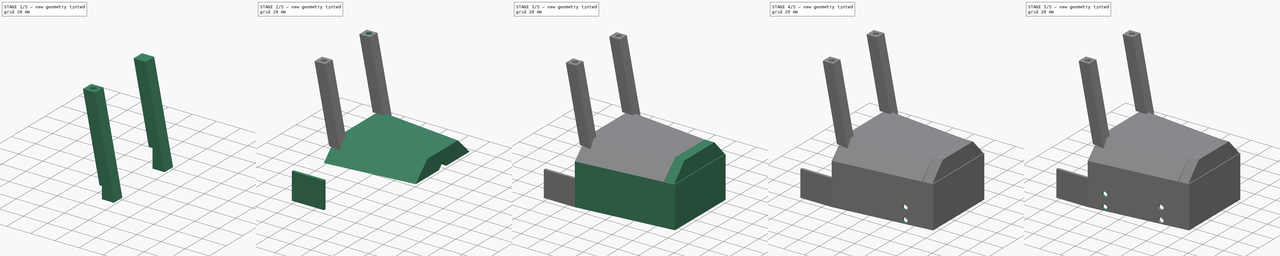
[diagram: build sequence overview — one tinted view per stage of 5, left to right]
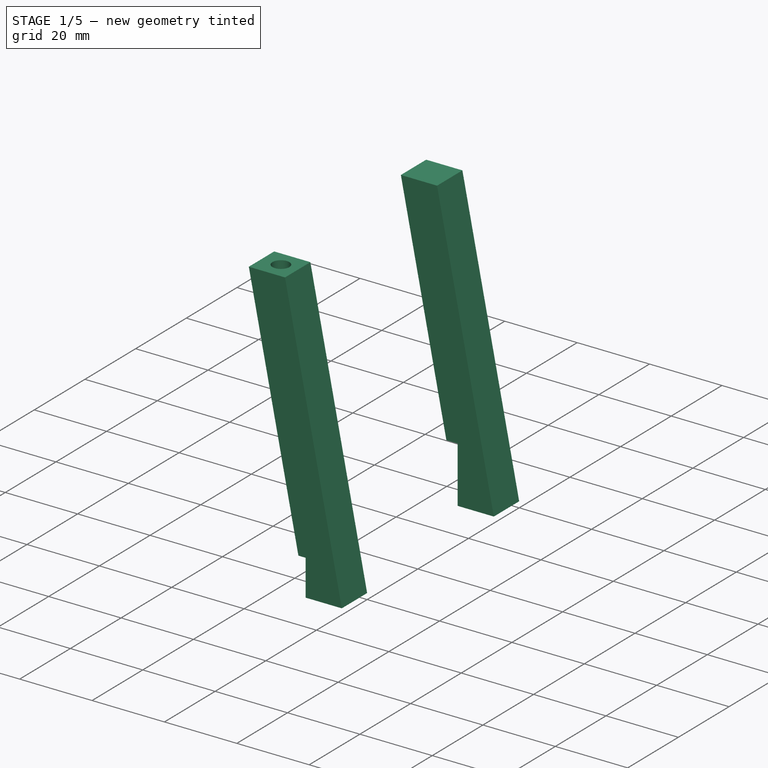
[diagram: stage 1 of 5 — iso view after this stage's code; geometry added in this stage tinted green]
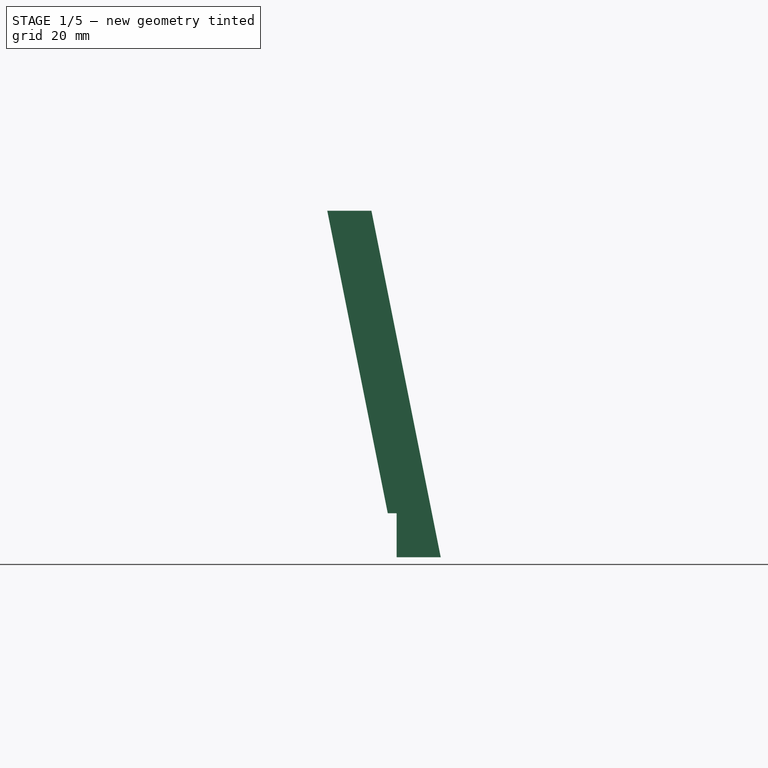
[diagram: stage 1 of 5 — front view after this stage's code; geometry added in this stage tinted green]
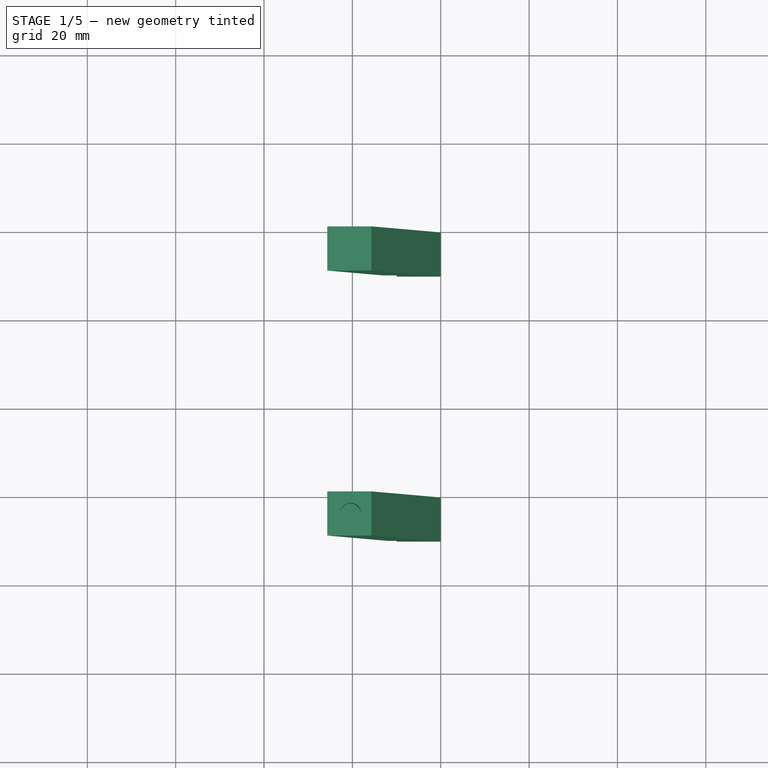
[diagram: stage 1 of 5 — top view after this stage's code; geometry added in this stage tinted green]
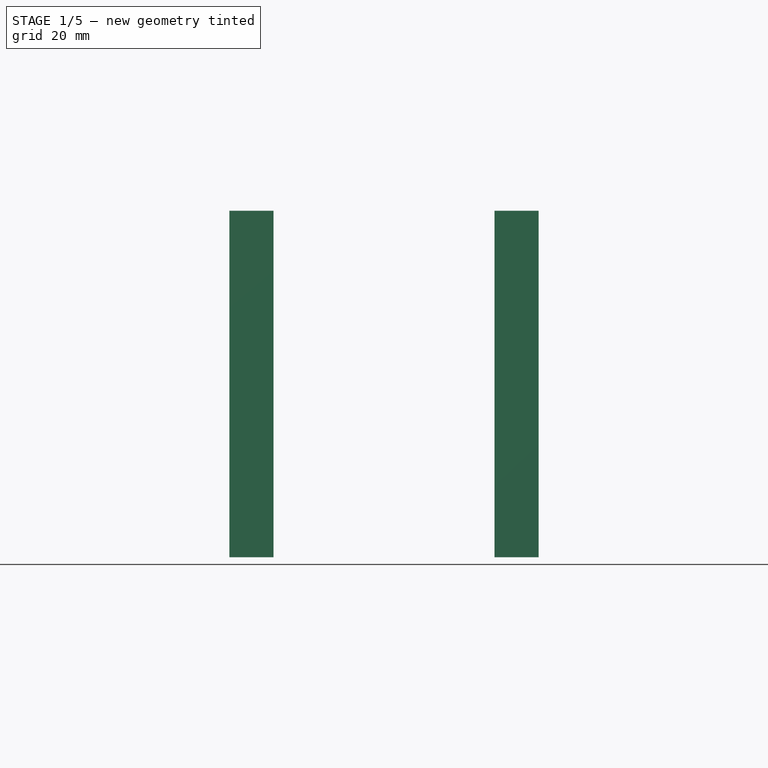
[diagram: stage 1 of 5 — right view after this stage's code; geometry added in this stage tinted green]
FCSTD DOCUMENT  (FreeCAD 0.20R29410 (Git))
Label: Carcasa
License: Creative Commons Attribution-ShareAlike
LicenseURL: http://creativecommons.org/licenses/by-sa/4.0/
objects: Sketcher::SketchObject×13, Part::Extrusion×13, Part::Cut×7, Part::MultiFuse×5
note: 38 computed .brp shape members not serialized (recipe doc carries the construction recipe); baked Part::Feature solids carry a one-line shape summary decoded from their .brp

FEATURE [Sketcher::SketchObject] Sketch022
  FullyConstrained = false
  MapMode = 5
  Placement = pos=(0,0,30) rot=(0,0,1;0rad)
  sketch-geometry (8):
    g0: LineSegment StartX=10 StartY=80 StartZ=0 EndX=20 EndY=80 EndZ=0
    g1: LineSegment StartX=20 StartY=80 StartZ=0 EndX=20 EndY=70 EndZ=0
    g2: LineSegment StartX=20 StartY=70 StartZ=0 EndX=10 EndY=70 EndZ=0
    g3: LineSegment StartX=10 StartY=70 StartZ=0 EndX=10 EndY=80 EndZ=0
    g4: LineSegment StartX=10 StartY=20 StartZ=0 EndX=20 EndY=20 EndZ=0
    g5: LineSegment StartX=20 StartY=20 StartZ=0 EndX=20 EndY=10 EndZ=0
    g6: LineSegment StartX=20 StartY=10 StartZ=0 EndX=10 EndY=10 EndZ=0
    g7: LineSegment StartX=10 StartY=10 StartZ=0 EndX=10 EndY=20 EndZ=0
  constraints (16):
    c: Coincident(g0,g1)
    c: Coincident(g1,g2)
    c: Coincident(g2,g3)
    c: Coincident(g3,g0)
    c: Horizontal(g0)
    c: Horizontal(g2)
    c: Vertical(g1)
    c: Vertical(g3)
    c: Coincident(g4,g5)
    c: Coincident(g5,g6)
    c: Coincident(g6,g7)
    c: Coincident(g7,g4)
    c: Horizontal(g4)
    c: Horizontal(g6)
    c: Vertical(g5)
    c: Vertical(g7)
FEATURE [Part::Extrusion] Extrude025
  Base = -> Sketch022
  Dir = (-0.2,0,1)
  DirMode = 0
  FaceMakerClass = Part::FaceMakerBullseye
  LengthFwd = 80
  LengthRev = 0
  Placement = pos=(20,0,40) rot=(0,0,1;0rad)
  Solid = true
  Symmetric = false
FEATURE [Sketcher::SketchObject] Sketch056
  FullyConstrained = false
  MapMode = 5
  Placement = pos=(30,0,30) rot=(0.57735,-0.57735,-0.57735;2.0944rad)
  sketch-geometry (6):
    g0: LineSegment StartX=0 StartY=25.2875 StartZ=0 EndX=0 EndY=40 EndZ=0
    g1: LineSegment StartX=0 StartY=40 StartZ=0 EndX=-15.6254 EndY=55.5589 EndZ=0
    g2: LineSegment StartX=-15.6254 StartY=55.5589 StartZ=0 EndX=-74.4647 EndY=55.5589 EndZ=0
    g3: LineSegment StartX=-74.4647 StartY=55.5589 StartZ=0 EndX=-90 EndY=40 EndZ=0
    g4: LineSegment StartX=-90 StartY=40 StartZ=0 EndX=-90 EndY=25.2875 EndZ=0
    g5: LineSegment StartX=-90 StartY=25.2875 StartZ=0 EndX=0 EndY=25.2875 EndZ=0
  constraints (11):
    c: PointOnObject(g0,g-2)
    c: PointOnObject(g0,g-2)
    c: Coincident(g0,g1)
    c: Coincident(g1,g2)
    c: Horizontal(g2)
    c: Coincident(g2,g3)
    c: Coincident(g3,g4)
    c: Vertical(g4)
    c: Coincident(g5,g4)
    c: Coincident(g5,g0)
    c: Horizontal(g5)
FEATURE [Part::Extrusion] Extrude053
  Base = -> Sketch056
  Dir = (-1,0,0)
  DirMode = 2
  FaceMakerClass = Part::FaceMakerBullseye
  LengthFwd = 10
  LengthRev = 0
  Solid = true
  Symmetric = false
FEATURE [Part::Cut] Cut
  Base = -> Extrude025
  Refine = true
  Tool = -> Extrude053
FEATURE [Sketcher::SketchObject] Sketch062
  FullyConstrained = false
  MapMode = 5
  Placement = pos=(-98,-107,0) rot=(0.57735,-0.57735,-0.57735;2.0944rad)
  sketch-geometry (3):
    g0: LineSegment StartX=-140.012 StartY=30 StartZ=0 EndX=-130 EndY=30 EndZ=0
    g1: Circle CenterX=-135.006 CenterY=30 CenterZ=0 NormalX=0 NormalY=0 NormalZ=1 AngleXU=0 Radius=2.34
    g2: LineSegment StartX=-140 StartY=20 StartZ=0 EndX=-130.017 EndY=20 EndZ=0
  constraints (3):
    c: Horizontal(g0)
    c: Symmetric(g0,g0,g1)
    c: Horizontal(g2)
FEATURE [Part::Extrusion] Extrude065  label="Tornillos020"
  Base = -> Sketch062
  Dir = (-1,2e-16,2e-16)
  DirMode = 2
  FaceMakerClass = Part::FaceMakerBullseye
  LengthFwd = 20
  LengthRev = 0
  Placement = pos=(49.6,-12.9,253.6) rot=(0,-1,0;1.5708rad)
  Solid = true
  Symmetric = false
FEATURE [Part::Cut] Cut035
  Base = -> Cut
  Refine = true
  Tool = -> Extrude065
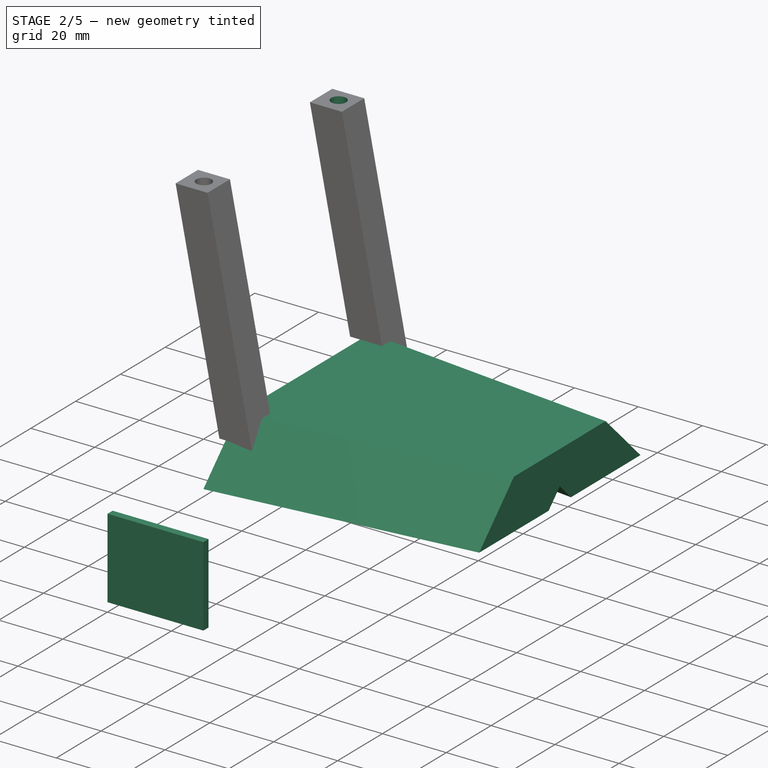
[diagram: stage 2 of 5 — iso view after this stage's code; geometry added in this stage tinted green]
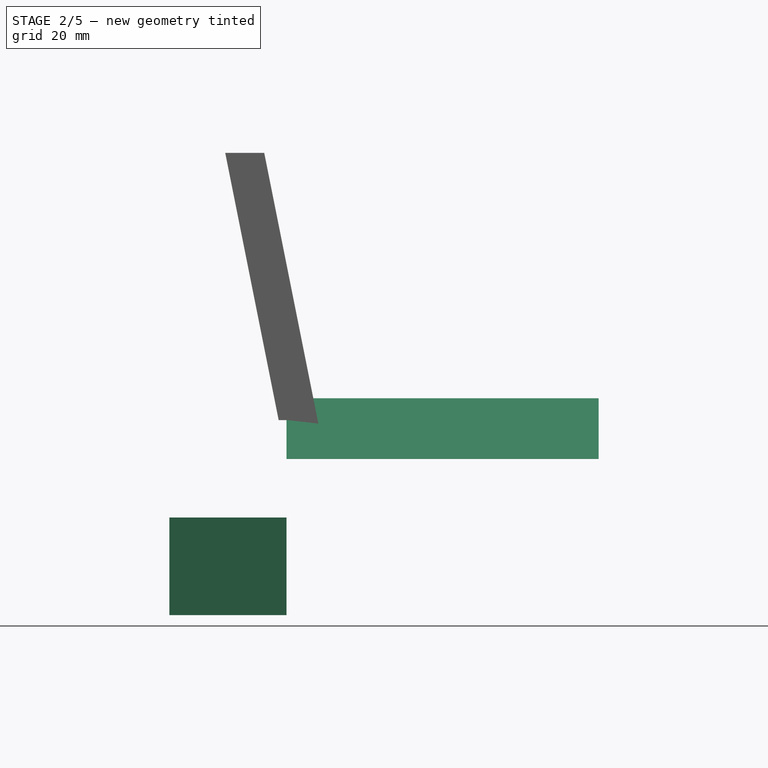
[diagram: stage 2 of 5 — front view after this stage's code; geometry added in this stage tinted green]
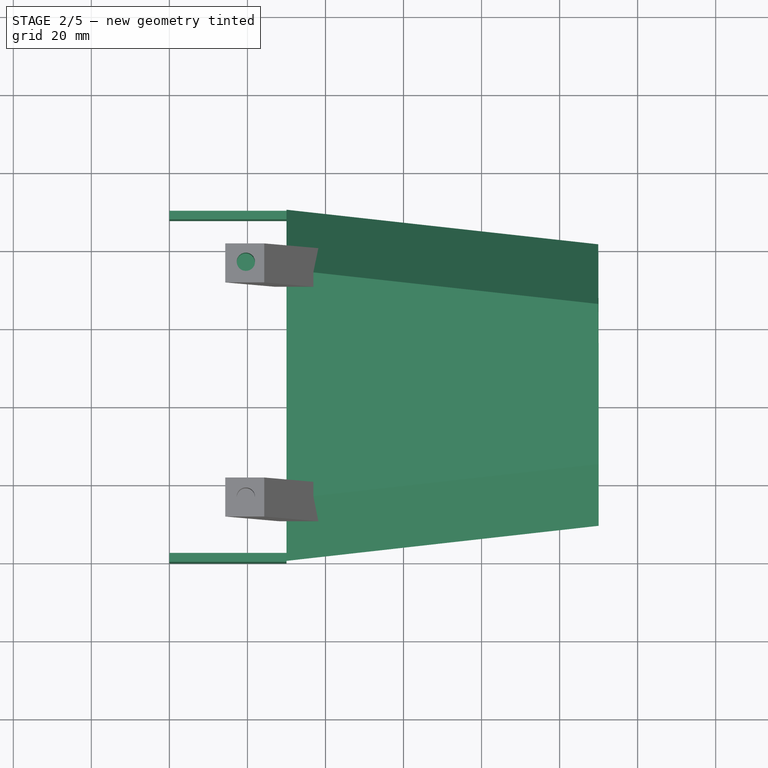
[diagram: stage 2 of 5 — top view after this stage's code; geometry added in this stage tinted green]
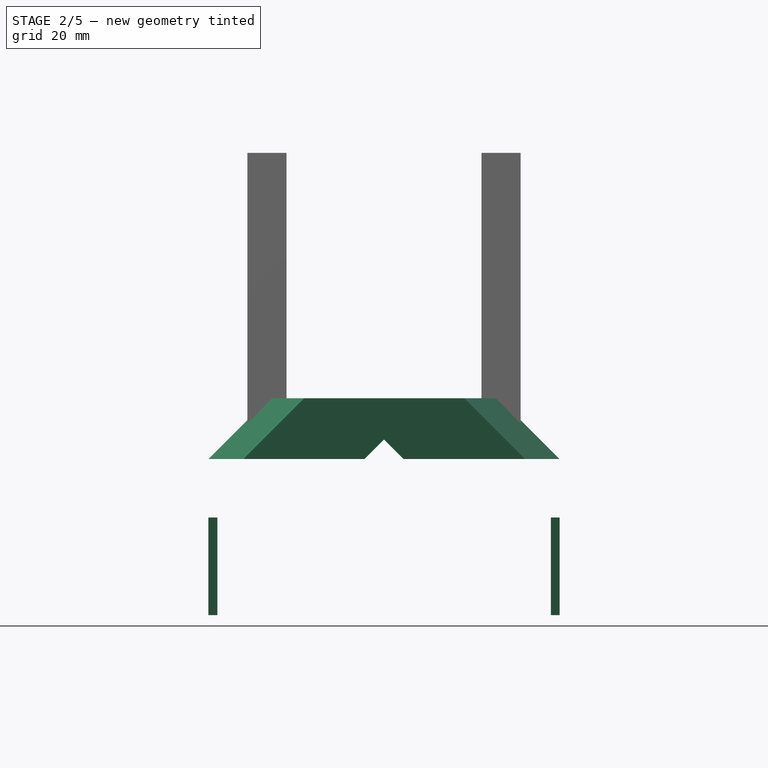
[diagram: stage 2 of 5 — right view after this stage's code; geometry added in this stage tinted green]
FEATURE [Sketcher::SketchObject] Sketch020
  FullyConstrained = false
  MapMode = 5
  Placement = pos=(0,0,30) rot=(0,0,1;0rad)
  sketch-geometry (4):
    g0: LineSegment StartX=30 StartY=60 StartZ=0 EndX=110 EndY=50 EndZ=0
    g1: LineSegment StartX=110 StartY=50 StartZ=0 EndX=109.915 EndY=81.1374 EndZ=0
    g2: LineSegment StartX=109.915 StartY=81.1374 StartZ=0 EndX=30 EndY=90 EndZ=0
    g3: LineSegment StartX=30 StartY=90 StartZ=0 EndX=30 EndY=60 EndZ=0
  constraints (3):
    c: Coincident(g0,g1)
    c: Coincident(g1,g2)
    c: Vertical(g3)
FEATURE [Part::Extrusion] Extrude023  label="Carcasa delantera"
  Base = -> Sketch020
  Dir = (0,-1,1)
  DirMode = 0
  FaceMakerClass = Part::FaceMakerBullseye
  LengthFwd = 22
  LengthRev = 0
  Placement = pos=(0,0,40) rot=(0,0,1;0rad)
  Solid = true
  Symmetric = false
FEATURE [Sketcher::SketchObject] Sketch021
  FullyConstrained = false
  MapMode = 5
  Placement = pos=(0,0,30) rot=(0,0,1;0rad)
  sketch-geometry (4):
    g0: LineSegment StartX=110 StartY=8.98712 StartZ=0 EndX=110 EndY=40 EndZ=0
    g1: LineSegment StartX=110 StartY=40 StartZ=0 EndX=30 EndY=30 EndZ=0
    g2: LineSegment StartX=30 StartY=0 StartZ=0 EndX=110 EndY=8.98712 EndZ=0
    g3: LineSegment StartX=30 StartY=0 StartZ=0 EndX=30 EndY=30 EndZ=0
  constraints (5):
    c: Coincident(g1,g0)
    c: PointOnObject(g2,g-1)
    c: Coincident(g2,g0)
    c: Coincident(g3,g1)
    c: Vertical(g3)
FEATURE [Part::Extrusion] Extrude024  label="Carcasa delantera001"
  Base = -> Sketch021
  Dir = (0,1,1)
  DirMode = 0
  FaceMakerClass = Part::FaceMakerBullseye
  LengthFwd = 22
  LengthRev = 0
  Placement = pos=(0,0,40) rot=(0,0,1;0rad)
  Solid = true
  Symmetric = false
FEATURE [Sketcher::SketchObject] Sketch049
  FullyConstrained = false
  MapMode = 5
  Placement = pos=(0,0,30) rot=(0,0,1;0rad)
  sketch-geometry (8):
    g0: LineSegment StartX=0 StartY=90 StartZ=0 EndX=30 EndY=90 EndZ=0
    g1: LineSegment StartX=30 StartY=90 StartZ=0 EndX=30 EndY=87.7792 EndZ=0
    g2: LineSegment StartX=30 StartY=87.7792 StartZ=0 EndX=0 EndY=87.7792 EndZ=0
    g3: LineSegment StartX=0 StartY=87.7792 StartZ=0 EndX=0 EndY=90 EndZ=0
    g4: LineSegment StartX=0 StartY=0 StartZ=0 EndX=0 EndY=2.31108 EndZ=0
    g5: LineSegment StartX=0 StartY=2.31108 StartZ=0 EndX=30 EndY=2.31108 EndZ=0
    g6: LineSegment StartX=30 StartY=2.31108 StartZ=0 EndX=30 EndY=0 EndZ=0
    g7: LineSegment StartX=30 StartY=0 StartZ=0 EndX=0 EndY=0 EndZ=0
  constraints (18):
    c: PointOnObject(g0,g-2)
    c: Horizontal(g0)
    c: Coincident(g0,g1)
    c: Vertical(g1)
    c: Coincident(g1,g2)
    c: PointOnObject(g2,g-2)
    c: Horizontal(g2)
    c: Coincident(g2,g3)
    c: Coincident(g3,g0)
    c: Coincident(g-1,g4)
    c: PointOnObject(g4,g-2)
    c: Coincident(g4,g5)
    c: Horizontal(g5)
    c: Coincident(g5,g6)
    c: PointOnObject(g6,g-1)
    c: Vertical(g6)
    c: Coincident(g6,g7)
    c: Coincident(g7,g4)
FEATURE [Part::Extrusion] Extrude051
  Base = -> Sketch049
  Dir = (0,0,1)
  DirMode = 2
  FaceMakerClass = Part::FaceMakerBullseye
  LengthFwd = 25
  LengthRev = 0
  Solid = true
  Symmetric = false
FEATURE [Sketcher::SketchObject] Sketch057
  FullyConstrained = false
  MapMode = 5
  Placement = pos=(-98,-107,0) rot=(0.57735,-0.57735,-0.57735;2.0944rad)
  sketch-geometry (3):
    g0: LineSegment StartX=-140.012 StartY=30 StartZ=0 EndX=-130 EndY=30 EndZ=0
    g1: Circle CenterX=-135.006 CenterY=30 CenterZ=0 NormalX=0 NormalY=0 NormalZ=1 AngleXU=0 Radius=2.34
    g2: LineSegment StartX=-140 StartY=20 StartZ=0 EndX=-130.017 EndY=20 EndZ=0
  constraints (3):
    c: Horizontal(g0)
    c: Symmetric(g0,g0,g1)
    c: Horizontal(g2)
FEATURE [Part::Extrusion] Extrude061  label="Tornillos016"
  Base = -> Sketch057
  Dir = (-1,2e-16,2e-16)
  DirMode = 2
  FaceMakerClass = Part::FaceMakerBullseye
  LengthFwd = 20
  LengthRev = 0
  Placement = pos=(49.6,47.3,253.75) rot=(0,-1,0;1.5708rad)
  Solid = true
  Symmetric = false
FEATURE [Part::Cut] Cut036
  Base = -> Cut035
  Refine = true
  Tool = -> Extrude061
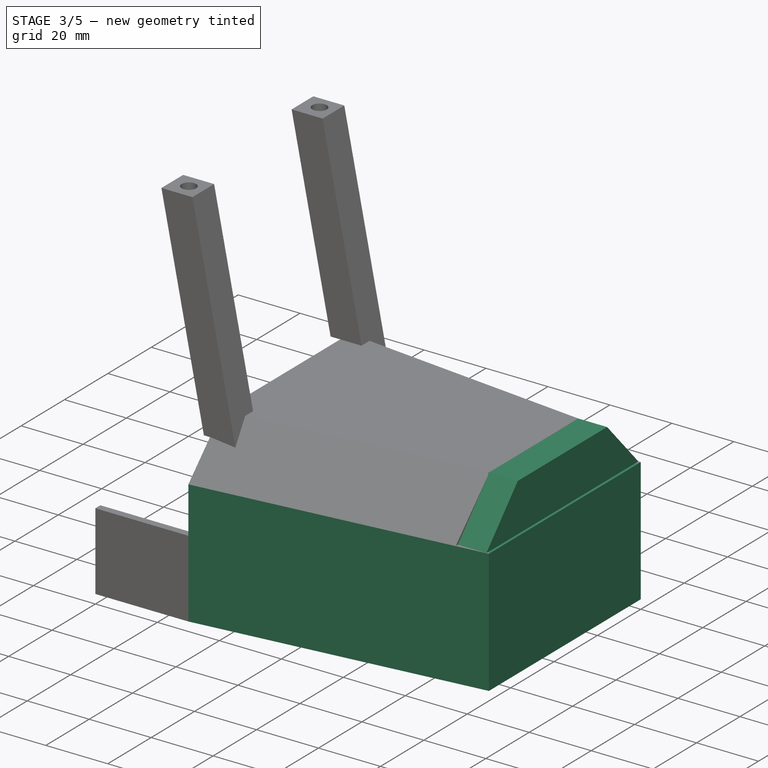
[diagram: stage 3 of 5 — iso view after this stage's code; geometry added in this stage tinted green]
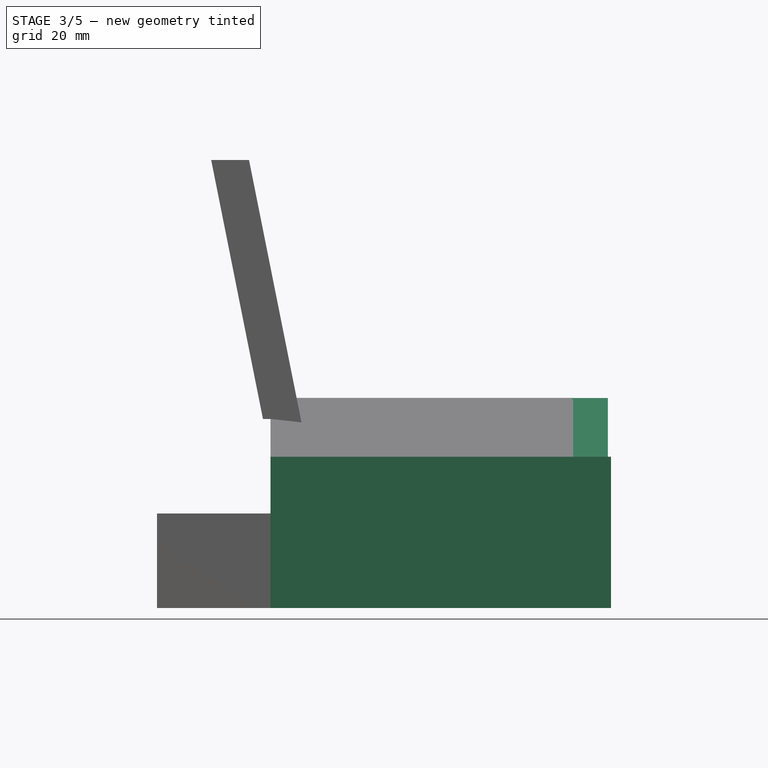
[diagram: stage 3 of 5 — front view after this stage's code; geometry added in this stage tinted green]
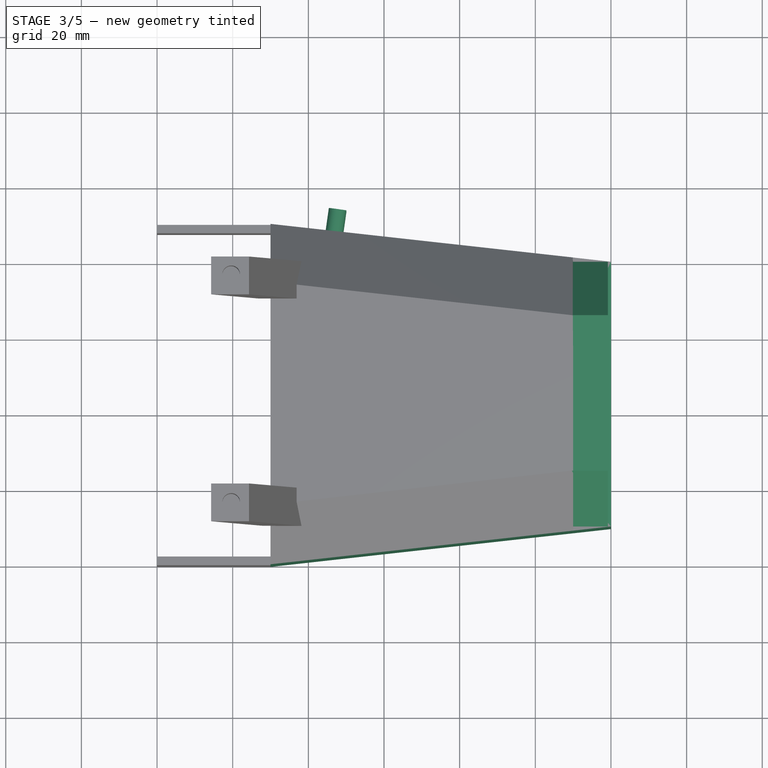
[diagram: stage 3 of 5 — top view after this stage's code; geometry added in this stage tinted green]
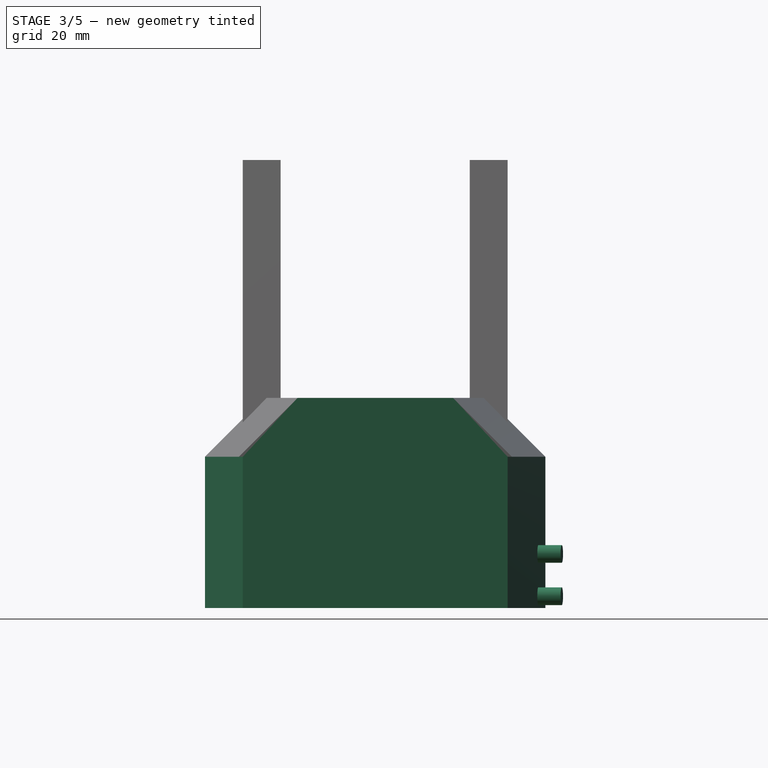
[diagram: stage 3 of 5 — right view after this stage's code; geometry added in this stage tinted green]
FEATURE [Sketcher::SketchObject] Sketch043
  FullyConstrained = false
  sketch-geometry (8):
    g0: LineSegment StartX=30 StartY=0 StartZ=0 EndX=120 EndY=10 EndZ=0
    g1: LineSegment StartX=120 StartY=10 StartZ=0 EndX=120 EndY=80 EndZ=0
    g2: LineSegment StartX=120 StartY=80 StartZ=0 EndX=30 EndY=90 EndZ=0
    g3: LineSegment StartX=30 StartY=90 StartZ=0 EndX=30 EndY=86.4594 EndZ=0
    g4: LineSegment StartX=30 StartY=86.4594 StartZ=0 EndX=118.511 EndY=76.9698 EndZ=0
    g5: LineSegment StartX=118.511 StartY=76.9698 StartZ=0 EndX=118.511 EndY=11.7511 EndZ=0
    g6: LineSegment StartX=118.511 StartY=11.7511 StartZ=0 EndX=30 EndY=2.54547 EndZ=0
    g7: LineSegment StartX=30 StartY=2.54547 StartZ=0 EndX=30 EndY=0 EndZ=0
  constraints (13):
    c: PointOnObject(g0,g-1)
    c: Coincident(g0,g1)
    c: Vertical(g1)
    c: Coincident(g1,g2)
    c: Coincident(g2,g3)
    c: Vertical(g3)
    c: Coincident(g3,g4)
    c: Coincident(g4,g5)
    c: Vertical(g5)
    c: Coincident(g5,g6)
    c: Coincident(g6,g7)
    c: Coincident(g7,g0)
    c: Vertical(g7)
FEATURE [Part::Extrusion] Extrude046  label="Carcasa delantera002"
  Base = -> Sketch043
  Dir = (0,0,1)
  DirMode = 2
  FaceMakerClass = Part::FaceMakerBullseye
  LengthFwd = 40
  LengthRev = 0
  Placement = pos=(0,0,30) rot=(0,0,1;0rad)
  Solid = true
  Symmetric = false
FEATURE [Sketcher::SketchObject] Sketch053
  FullyConstrained = false
  MapMode = 5
  Placement = pos=(-98,-107,0) rot=(0.57735,-0.57735,-0.57735;2.0944rad)
  sketch-geometry (4):
    g0: LineSegment StartX=-140.016 StartY=26.302 StartZ=0 EndX=-130.004 EndY=26.302 EndZ=0
    g1: Circle CenterX=-135.01 CenterY=26.302 CenterZ=0 NormalX=0 NormalY=0 NormalZ=1 AngleXU=0 Radius=2.34
    g2: LineSegment StartX=-140.095 StartY=15.1162 StartZ=0 EndX=-130 EndY=15.1162 EndZ=0
    g3: Circle CenterX=-135.047 CenterY=15.1162 CenterZ=0 NormalX=0 NormalY=0 NormalZ=1 AngleXU=0 Radius=2.34
  constraints (6):
    c: Horizontal(g0)
    c: Symmetric(g0,g0,g1)
    c: Horizontal(g2)
    c: Symmetric(g2,g2,g3)
    c: Equal(g1,g3)
    c: Diameter(g3) = 4.68
FEATURE [Part::Extrusion] Extrude058  label="Tornillos014"
  Base = -> Sketch053
  Dir = (-1,2e-16,2e-16)
  DirMode = 2
  FaceMakerClass = Part::FaceMakerBullseye
  LengthFwd = 20
  LengthRev = 0
  Placement = pos=(3.5767,-18.6127,18) rot=(0,0,1;4.57276rad)
  Solid = true
  Symmetric = false
FEATURE [Sketcher::SketchObject] Sketch
  FullyConstrained = false
  Placement = pos=(0,0,0) rot=(0.57735,0.57735,0.57735;2.0944rad)
  sketch-geometry (4):
    g0: LineSegment StartX=10 StartY=70 StartZ=0 EndX=24.4651 EndY=85.518 EndZ=0
    g1: LineSegment StartX=24.4651 StartY=85.518 StartZ=0 EndX=65.6255 EndY=85.518 EndZ=0
    g2: LineSegment StartX=65.6255 StartY=85.518 StartZ=0 EndX=80 EndY=70 EndZ=0
    g3: LineSegment StartX=80 StartY=70 StartZ=0 EndX=10 EndY=70 EndZ=0
  constraints (6):
    c: Coincident(g0,g1)
    c: Horizontal(g1)
    c: Coincident(g1,g2)
    c: Coincident(g2,g3)
    c: Coincident(g3,g0)
    c: Horizontal(g3)
FEATURE [Part::Extrusion] Extrude
  Base = -> Sketch
  Dir = (1,0,0)
  DirMode = 2
  FaceMakerClass = Part::FaceMakerBullseye
  LengthFwd = 10
  LengthRev = 0
  Placement = pos=(109.2,0,0) rot=(0,0,1;0rad)
  Solid = true
  Symmetric = false
FEATURE [Part::MultiFuse] Fusion019
  Refine = true
  Shapes = -> [Extrude023,Extrude024]
FEATURE [Part::MultiFuse] Fusion020
  Refine = true
  Shapes = -> [Fusion019,Extrude]
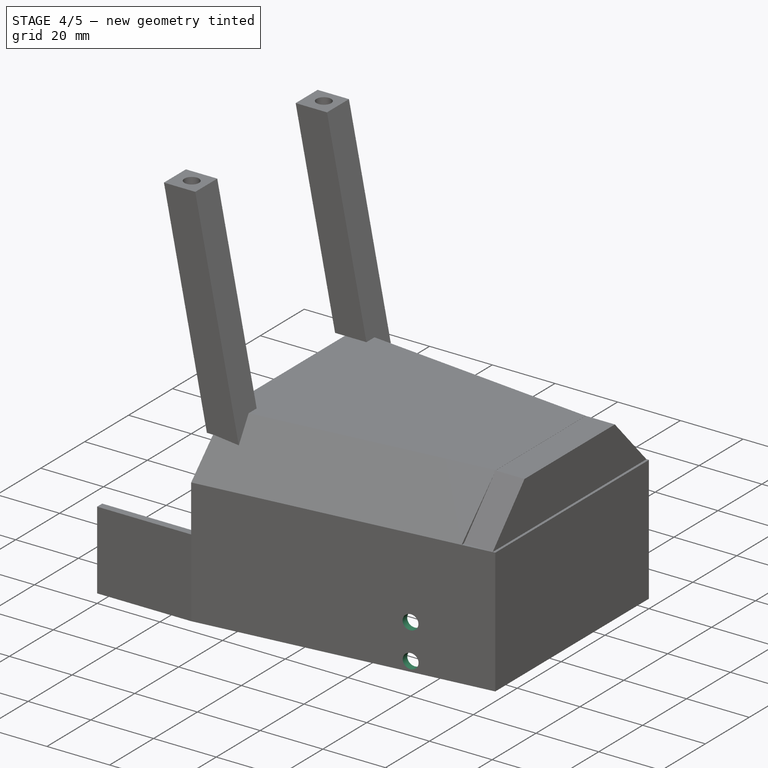
[diagram: stage 4 of 5 — iso view after this stage's code; geometry added in this stage tinted green]
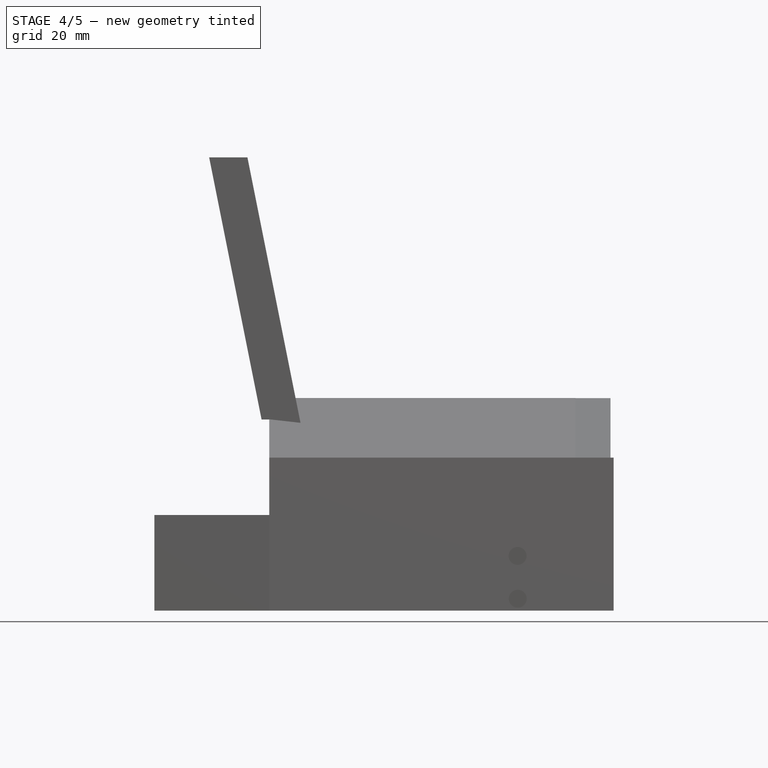
[diagram: stage 4 of 5 — front view after this stage's code; geometry added in this stage tinted green]
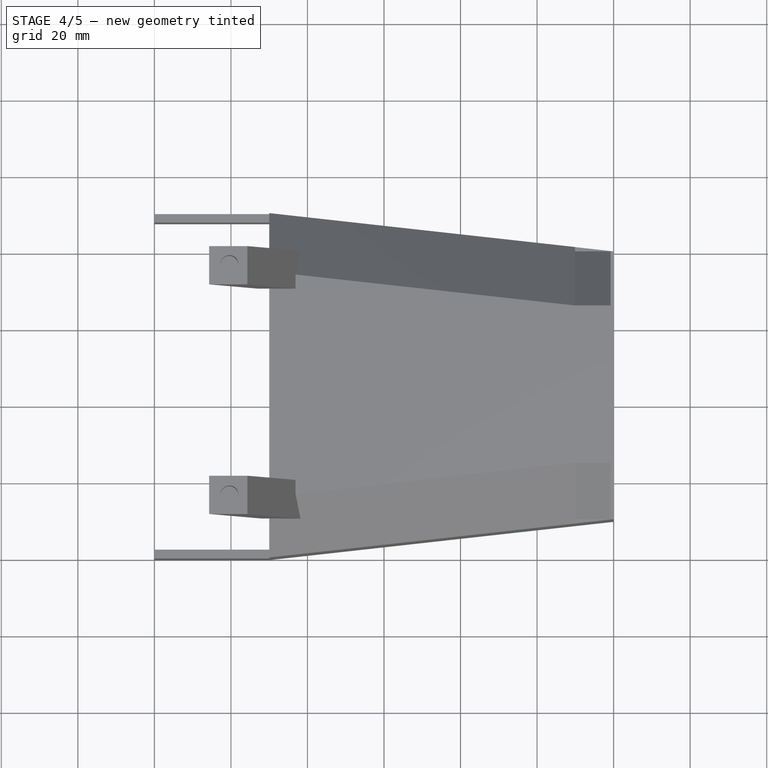
[diagram: stage 4 of 5 — top view after this stage's code; geometry added in this stage tinted green]
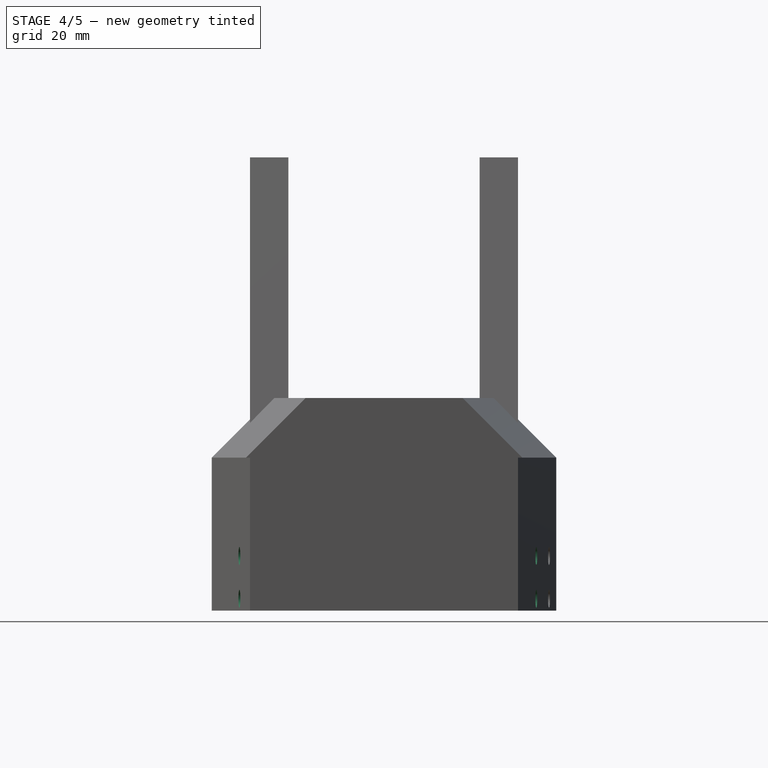
[diagram: stage 4 of 5 — right view after this stage's code; geometry added in this stage tinted green]
FEATURE [Sketcher::SketchObject] Sketch051
  FullyConstrained = false
  MapMode = 5
  Placement = pos=(-98,-107,4e-16) rot=(0.57735,-0.57735,-0.57735;2.0944rad)
  sketch-geometry (4):
    g0: LineSegment StartX=-140.016 StartY=26.302 StartZ=0 EndX=-130.004 EndY=26.302 EndZ=0
    g1: Circle CenterX=-135.01 CenterY=26.302 CenterZ=0 NormalX=0 NormalY=0 NormalZ=1 AngleXU=0 Radius=2.34
    g2: LineSegment StartX=-140.095 StartY=15.1162 StartZ=0 EndX=-130 EndY=15.1162 EndZ=0
    g3: Circle CenterX=-135.047 CenterY=15.1162 CenterZ=0 NormalX=0 NormalY=0 NormalZ=1 AngleXU=0 Radius=2.34
  constraints (6):
    c: Horizontal(g0)
    c: Symmetric(g0,g0,g1)
    c: Horizontal(g2)
    c: Symmetric(g2,g2,g3)
    c: Equal(g1,g3)
    c: Diameter(g3) = 4.68
FEATURE [Part::Extrusion] Extrude056  label="Tornillos012"
  Base = -> Sketch051
  Dir = (-1,2e-16,2e-16)
  DirMode = 2
  FaceMakerClass = Part::FaceMakerBullseye
  LengthFwd = 20
  LengthRev = 0
  Placement = pos=(66.9,-97,18) rot=(0,0,1;4.71239rad)
  Solid = true
  Symmetric = false
FEATURE [Sketcher::SketchObject] Sketch054
  FullyConstrained = false
  MapMode = 5
  Placement = pos=(-98,-107,0) rot=(0.57735,-0.57735,-0.57735;2.0944rad)
  sketch-geometry (4):
    g0: LineSegment StartX=-140.016 StartY=26.302 StartZ=0 EndX=-130.004 EndY=26.302 EndZ=0
    g1: Circle CenterX=-135.01 CenterY=26.302 CenterZ=0 NormalX=0 NormalY=0 NormalZ=1 AngleXU=0 Radius=2.34
    g2: LineSegment StartX=-140.095 StartY=15.1162 StartZ=0 EndX=-130 EndY=15.1162 EndZ=0
    g3: Circle CenterX=-135.047 CenterY=15.1162 CenterZ=0 NormalX=0 NormalY=0 NormalZ=1 AngleXU=0 Radius=2.34
  constraints (6):
    c: Horizontal(g0)
    c: Symmetric(g0,g0,g1)
    c: Horizontal(g2)
    c: Symmetric(g2,g2,g3)
    c: Equal(g1,g3)
    c: Diameter(g3) = 4.68
FEATURE [Part::Extrusion] Extrude059  label="Tornillos015"
  Base = -> Sketch054
  Dir = (-1,2e-16,2e-16)
  DirMode = 2
  FaceMakerClass = Part::FaceMakerBullseye
  LengthFwd = 20
  LengthRev = 0
  Placement = pos=(33.3838,-22.8018,18) rot=(0,0,-1;1.71042rad)
  Solid = true
  Symmetric = false
FEATURE [Part::Cut] Cut031
  Base = -> Extrude046
  Refine = true
  Tool = -> Extrude058
FEATURE [Part::Cut] Cut032
  Base = -> Cut031
  Refine = true
  Tool = -> Extrude059
FEATURE [Part::Cut] Cut033
  Base = -> Cut032
  Refine = true
  Tool = -> Extrude056
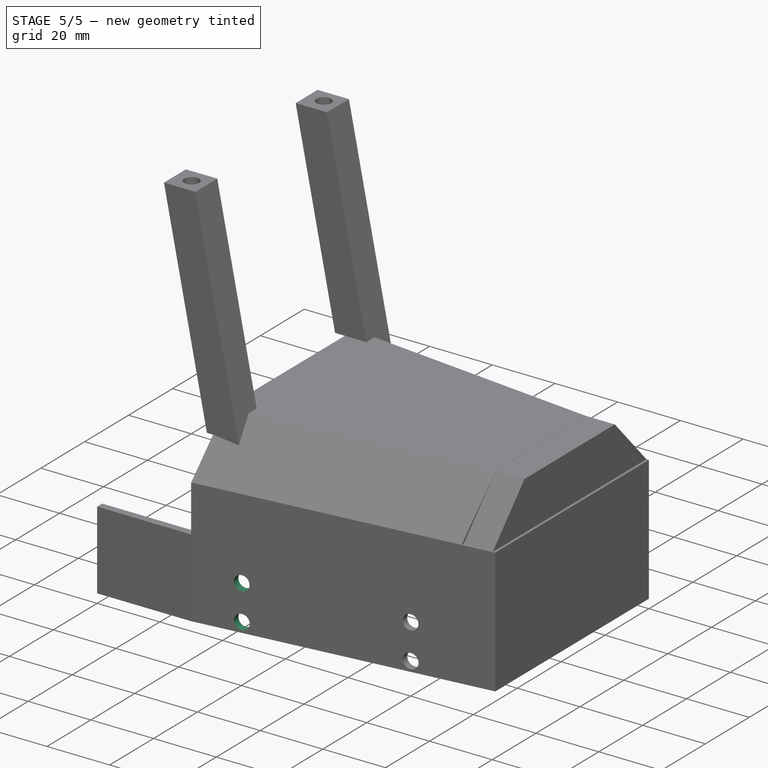
[diagram: stage 5 of 5 — iso view after this stage's code; geometry added in this stage tinted green]
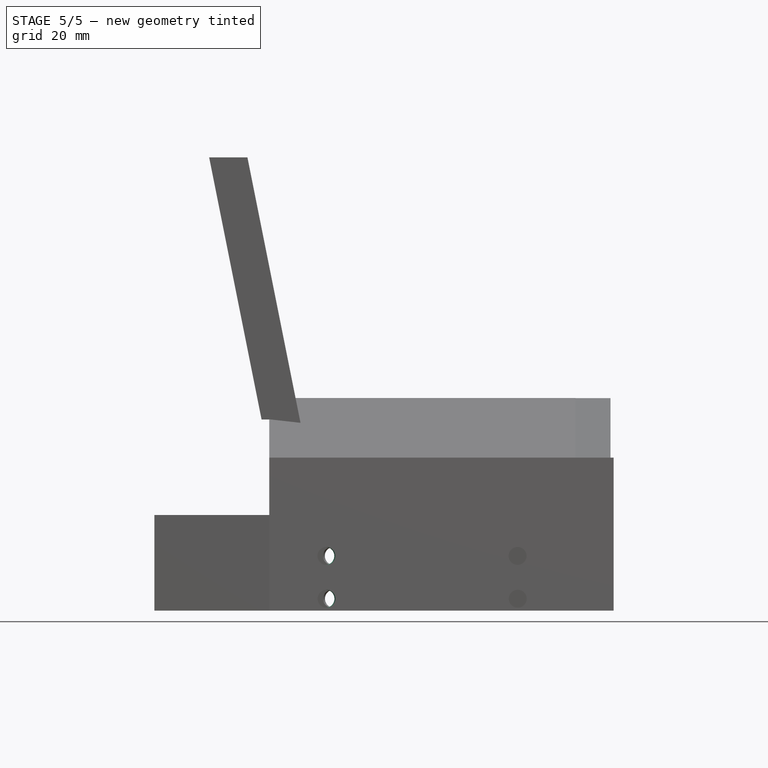
[diagram: stage 5 of 5 — front view after this stage's code; geometry added in this stage tinted green]
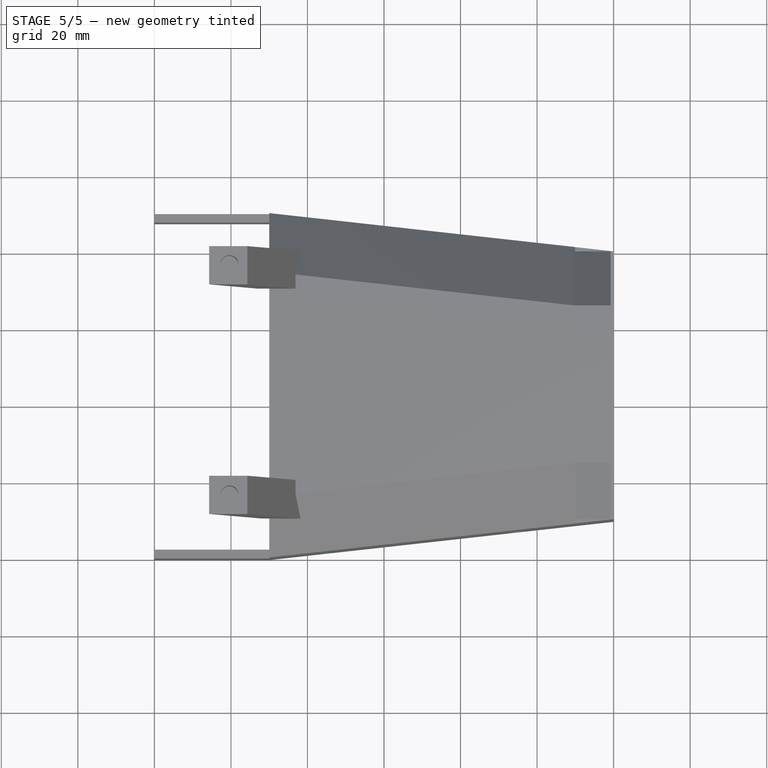
[diagram: stage 5 of 5 — top view after this stage's code; geometry added in this stage tinted green]
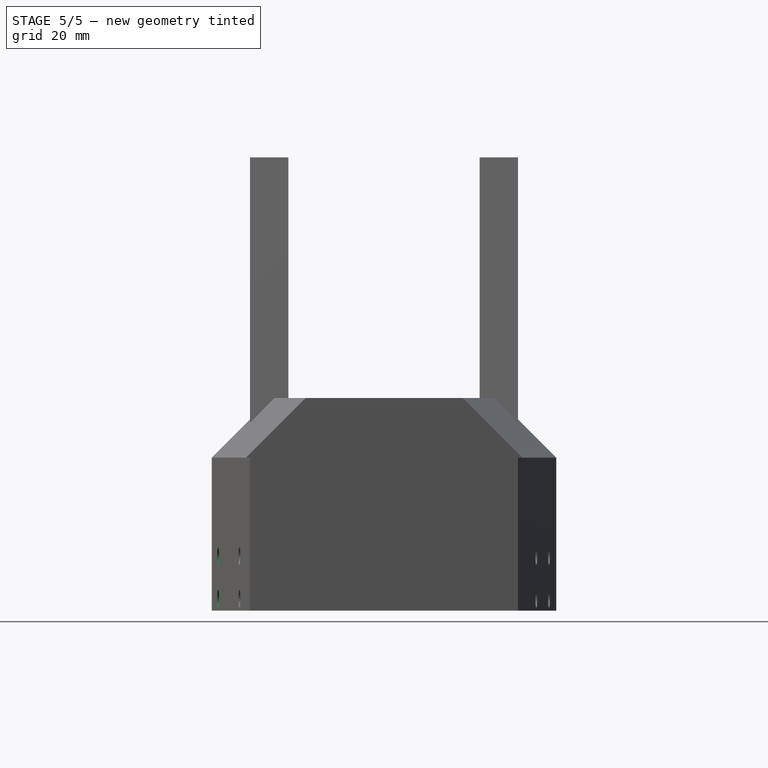
[diagram: stage 5 of 5 — right view after this stage's code; geometry added in this stage tinted green]
FEATURE [Sketcher::SketchObject] Sketch052
  FullyConstrained = false
  MapMode = 5
  Placement = pos=(-98,-107,0) rot=(0.57735,-0.57735,-0.57735;2.0944rad)
  sketch-geometry (4):
    g0: LineSegment StartX=-140.016 StartY=26.302 StartZ=0 EndX=-130.004 EndY=26.302 EndZ=0
    g1: Circle CenterX=-135.01 CenterY=26.302 CenterZ=0 NormalX=0 NormalY=0 NormalZ=1 AngleXU=0 Radius=2.34
    g2: LineSegment StartX=-140.095 StartY=15.1162 StartZ=0 EndX=-130 EndY=15.1162 EndZ=0
    g3: Circle CenterX=-135.047 CenterY=15.1162 CenterZ=0 NormalX=0 NormalY=0 NormalZ=1 AngleXU=0 Radius=2.34
  constraints (6):
    c: Horizontal(g0)
    c: Symmetric(g0,g0,g1)
    c: Horizontal(g2)
    c: Symmetric(g2,g2,g3)
    c: Equal(g1,g3)
    c: Diameter(g3) = 4.68
FEATURE [Part::Extrusion] Extrude057  label="Tornillos013"
  Base = -> Sketch052
  Dir = (-1,2e-16,2e-16)
  DirMode = 2
  FaceMakerClass = Part::FaceMakerBullseye
  LengthFwd = 20
  LengthRev = 0
  Placement = pos=(28.1585,-106.603,18) rot=(0,0,-1;1.46608rad)
  Solid = true
  Symmetric = false
FEATURE [Part::Cut] Cut034
  Base = -> Cut033
  Refine = true
  Tool = -> Extrude057
FEATURE [Part::MultiFuse] Fusion021  label="Carcasa"
  Refine = true
  Shapes = -> [Fusion020,Cut034]
FEATURE [Part::MultiFuse] Fusion  label="Carcasa001"
  Refine = true
  Shapes = -> [Fusion021,Extrude051]
FEATURE [Part::MultiFuse] Fusion022
  Refine = true
  Shapes = -> [Fusion,Cut036]
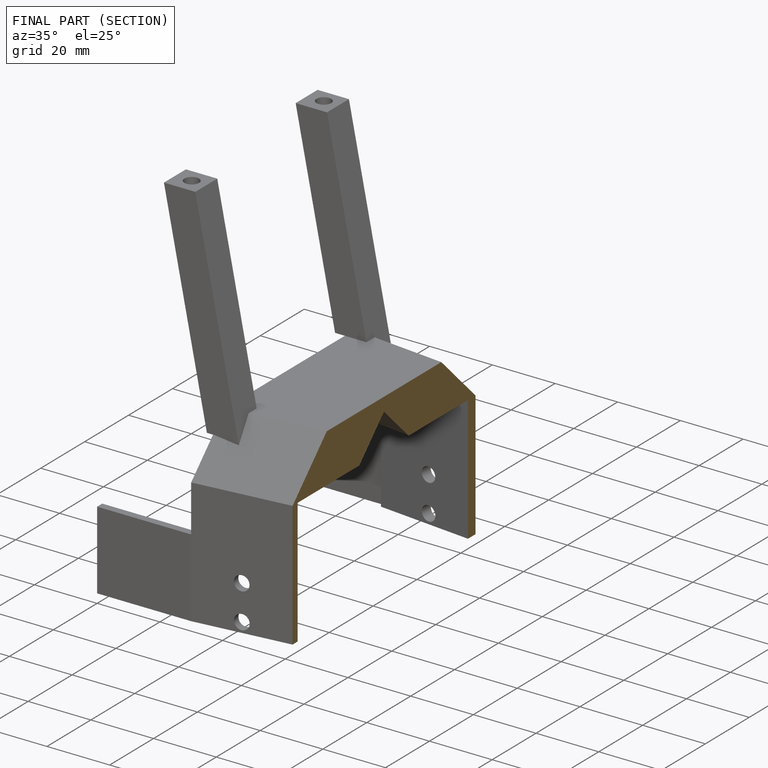
[diagram: finished part — half-section view (interior)]
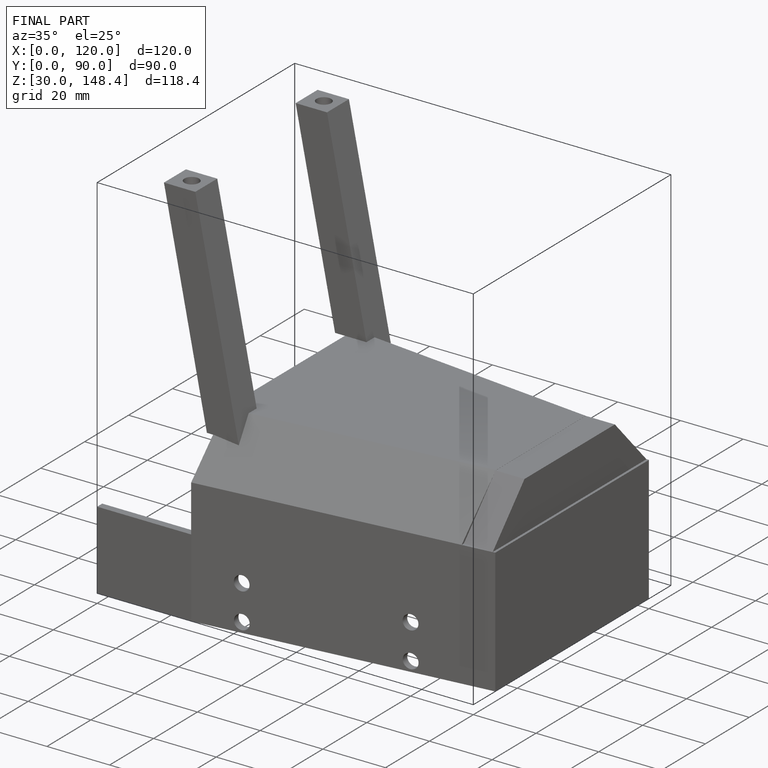
[diagram: finished part — iso view with bounding-box wireframe]
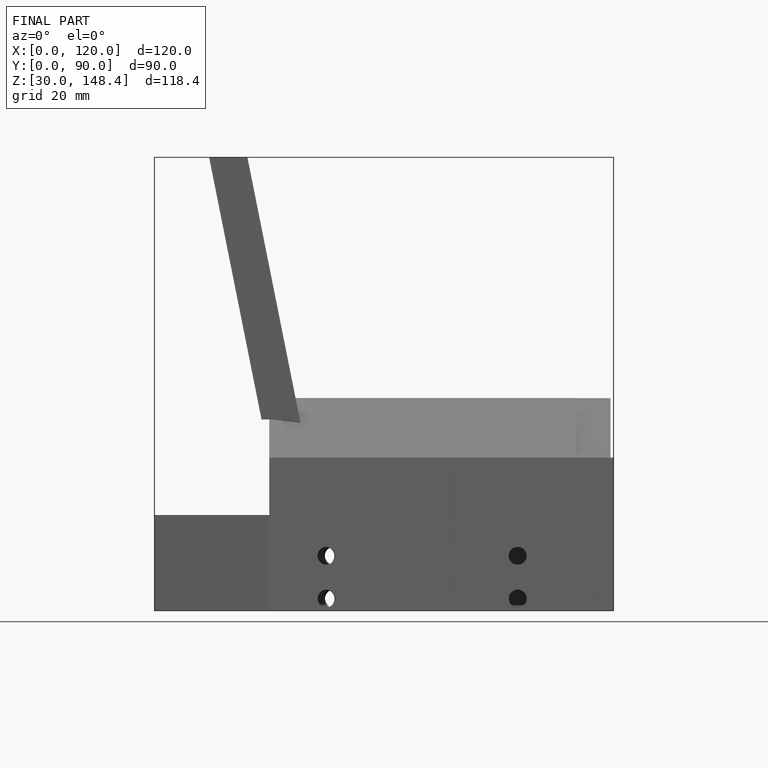
[diagram: finished part — front view with bounding-box wireframe]
